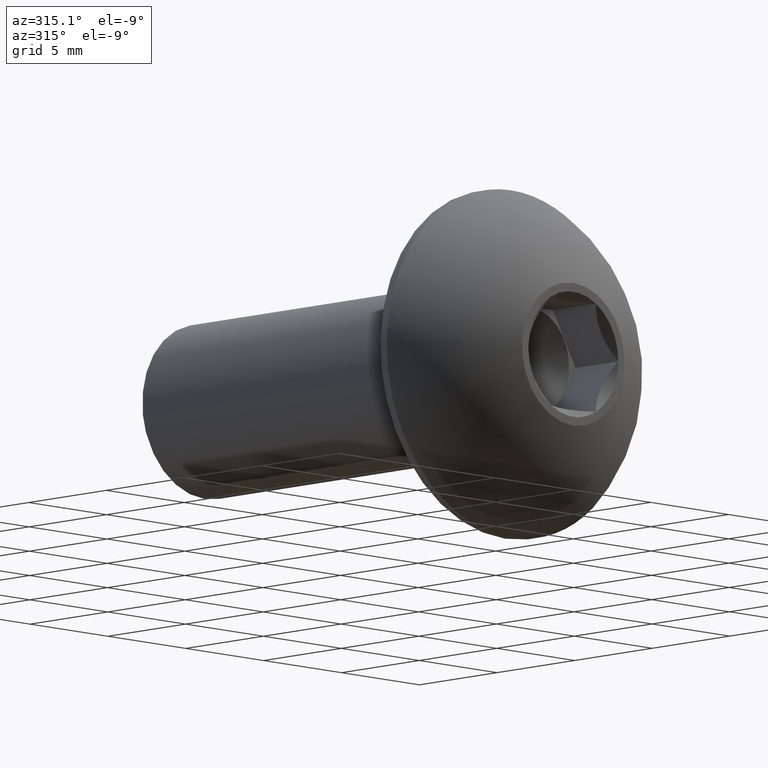
[diagram: clean part render]
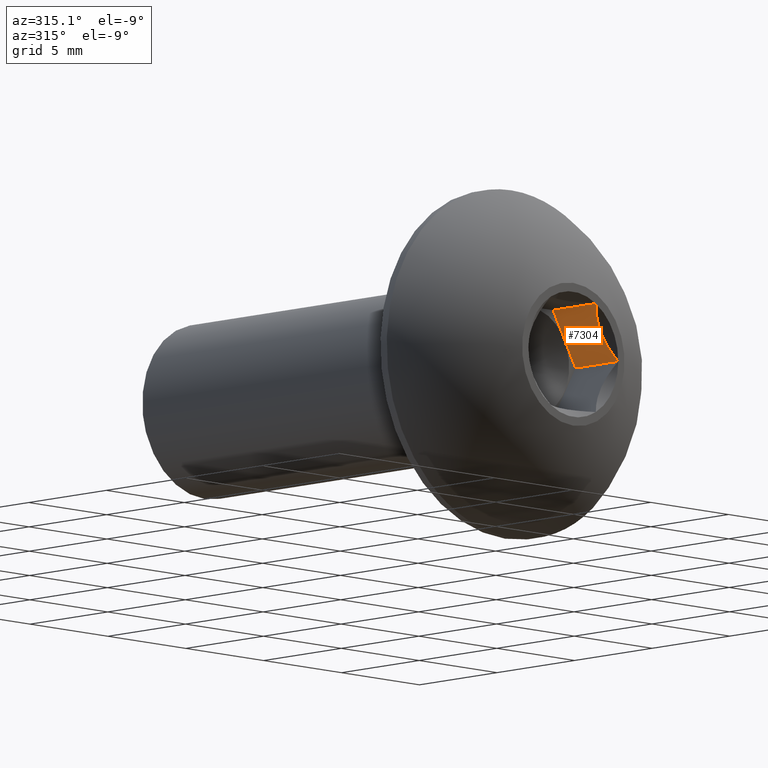
[diagram: same view with one face highlighted and labeled with its STEP entity id]
A machine part, auxiliary view. The second image highlights one B-rep face of the part: STEP entity #7304.
In plain terms, the highlighted planar face has unit normal (-0.866, 0, -0.5).
Its self-contained STEP definition (entity closure, byte-faithful):
#229 = CARTESIAN_POINT ( 'NONE',  ( 1.556814182538547531, 0.1134385095648802050, 2.303518737899377999 ) ) ;
#284 = CARTESIAN_POINT ( 'NONE',  ( 1.443375672974036128, 0.000000000000000000, 2.499999999999999556 ) ) ;
#328 = CARTESIAN_POINT ( 'NONE',  ( 2.773977436328979085, 0.1127739096191515550, 0.1953301412284839667 ) ) ;
#887 = FACE_OUTER_BOUND ( 'NONE', #10998, .T. ) ;
#1416 = CARTESIAN_POINT ( 'NONE',  ( 2.886751345948091352, 0.000000000000000000, -3.245523709726175585E-16 ) ) ;
#1745 = LINE ( 'NONE', #3642, #6699 ) ;
#1777 = CARTESIAN_POINT ( 'NONE',  ( 2.658659580573939252, 0.2086598227133410755, 0.3950665264161134504 ) ) ;
#1875 = DIRECTION ( 'NONE',  ( -0.8660254037844400399, 0.000000000000000000, -0.4999999999999976685 ) ) ;
#2474 = DIRECTION ( 'NONE',  ( 0.000000000000000000, -1.000000000000000000, 0.000000000000000000 ) ) ;
#2556 = VERTEX_POINT ( 'NONE', #5728 ) ;
#2588 = VERTEX_POINT ( 'NONE', #7960 ) ;
#2680 = CARTESIAN_POINT ( 'NONE',  ( 1.917866307361776768, 0.3491231083329924267, 1.678158113524839345 ) ) ;
#2757 = CARTESIAN_POINT ( 'NONE',  ( 2.886751345948091352, 2.750000000000000000, -3.245523709726175585E-16 ) ) ;
#3246 = DIRECTION ( 'NONE',  ( -0.4999999999999976130, 0.000000000000000000, 0.8660254037844399289 ) ) ;
#3274 = ORIENTED_EDGE ( 'NONE', *, *, #8931, .T. ) ;
#3642 = CARTESIAN_POINT ( 'NONE',  ( 1.443375672974036128, 2.750000000000000000, 2.499999999999999556 ) ) ;
#4424 = PLANE ( 'NONE',  #8026 ) ;
#4546 = CARTESIAN_POINT ( 'NONE',  ( 2.886751345948091352, 2.750000000000000000, -3.245523709726175585E-16 ) ) ;
#4673 = VECTOR ( 'NONE', #2474, 1000.000000000000000 ) ;
#4924 = CARTESIAN_POINT ( 'NONE',  ( 2.230722738129622851, 0.3864777948435643151, 1.136274879960271988 ) ) ;
#5208 = EDGE_CURVE ( 'NONE', #10451, #2556, #11310, .T. ) ;
#5728 = CARTESIAN_POINT ( 'NONE',  ( 2.886751345948091352, 0.000000000000000000, -3.245523709726175585E-16 ) ) ;
#5966 = ORIENTED_EDGE ( 'NONE', *, *, #14988, .F. ) ;
#6103 = CARTESIAN_POINT ( 'NONE',  ( 2.479495078800104224, 0.3114115009033338599, 0.7053885464011599993 ) ) ;
#6365 = CARTESIAN_POINT ( 'NONE',  ( 1.443375672974036128, 2.750000000000000000, 2.499999999999999556 ) ) ;
#6474 = CARTESIAN_POINT ( 'NONE',  ( 1.673615306705369843, 0.2107063931481793218, 2.101213256461277101 ) ) ;
#6699 = VECTOR ( 'NONE', #9363, 1000.000000000000000 ) ;
#7304 = ADVANCED_FACE ( 'NONE', ( #887 ), #4424, .T. ) ;
#7787 = LINE ( 'NONE', #6365, #4673 ) ;
#7960 = CARTESIAN_POINT ( 'NONE',  ( 1.443375672974036128, 0.000000000000000000, 2.499999999999999556 ) ) ;
#8026 = AXIS2_PLACEMENT_3D ( 'NONE', #13511, #1875, #3246 ) ;
#8931 = EDGE_CURVE ( 'NONE', #2556, #2588, #14149, .T. ) ;
#9363 = DIRECTION ( 'NONE',  ( 0.4999999999999976130, 0.000000000000000000, -0.8660254037844400399 ) ) ;
#9655 = CARTESIAN_POINT ( 'NONE',  ( 2.294634733168490204, 0.3763512970261608248, 1.025576057339862013 ) ) ;
#10224 = ORIENTED_EDGE ( 'NONE', *, *, #14575, .T. ) ;
#10451 = VERTEX_POINT ( 'NONE', #2757 ) ;
#10564 = VECTOR ( 'NONE', #15075, 1000.000000000000000 ) ;
#10998 = EDGE_LOOP ( 'NONE', ( #3274, #5966, #10224, #14485 ) ) ;
#11015 = CARTESIAN_POINT ( 'NONE',  ( 1.443375672974036128, 2.750000000000000000, 2.499999999999999556 ) ) ;
#11070 = CARTESIAN_POINT ( 'NONE',  ( 2.041718103336060075, 0.3872814962976819930, 1.463640510288724217 ) ) ;
#11310 = LINE ( 'NONE', #4546, #10564 ) ;
#13413 = CARTESIAN_POINT ( 'NONE',  ( 2.418731414073786112, 0.3387436495512581303, 0.8106343009612271278 ) ) ;
#13511 = CARTESIAN_POINT ( 'NONE',  ( 1.443375672974036128, 2.750000000000000000, 2.499999999999999556 ) ) ;
#13688 = VERTEX_POINT ( 'NONE', #11015 ) ;
#14149 = B_SPLINE_CURVE_WITH_KNOTS ( 'NONE', 3,
 ( #1416, #328, #1777, #6103, #13413, #9655, #4924, #11070, #2680, #6474, #229, #284 ),
 .UNSPECIFIED., .F., .F.,
 ( 4, 2, 2, 2, 2, 4 ),
 ( 2.544340436143541986E-07, 0.0007457281437449321624, 0.001118464998595590553, 0.001491201853446249377, 0.002236675563147566374, 0.002982149272848884456 ),
 .UNSPECIFIED. ) ;
#14485 = ORIENTED_EDGE ( 'NONE', *, *, #5208, .T. ) ;
#14575 = EDGE_CURVE ( 'NONE', #13688, #10451, #1745, .T. ) ;
#14988 = EDGE_CURVE ( 'NONE', #13688, #2588, #7787, .T. ) ;
#15075 = DIRECTION ( 'NONE',  ( 0.000000000000000000, -1.000000000000000000, 0.000000000000000000 ) ) ;